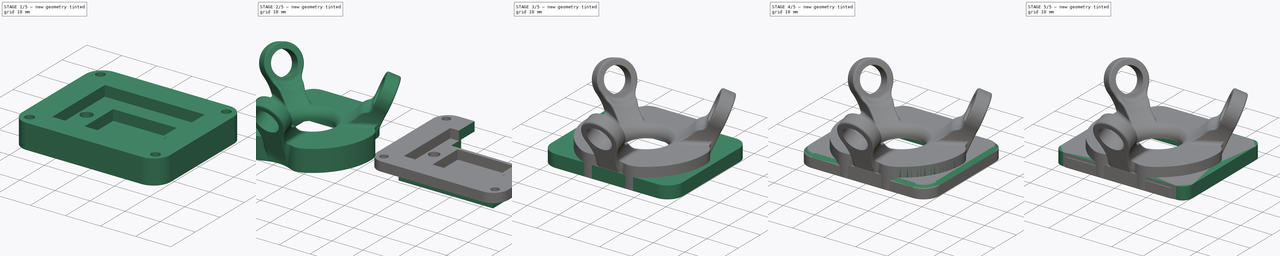
[diagram: build sequence overview — one tinted view per stage of 5, left to right]
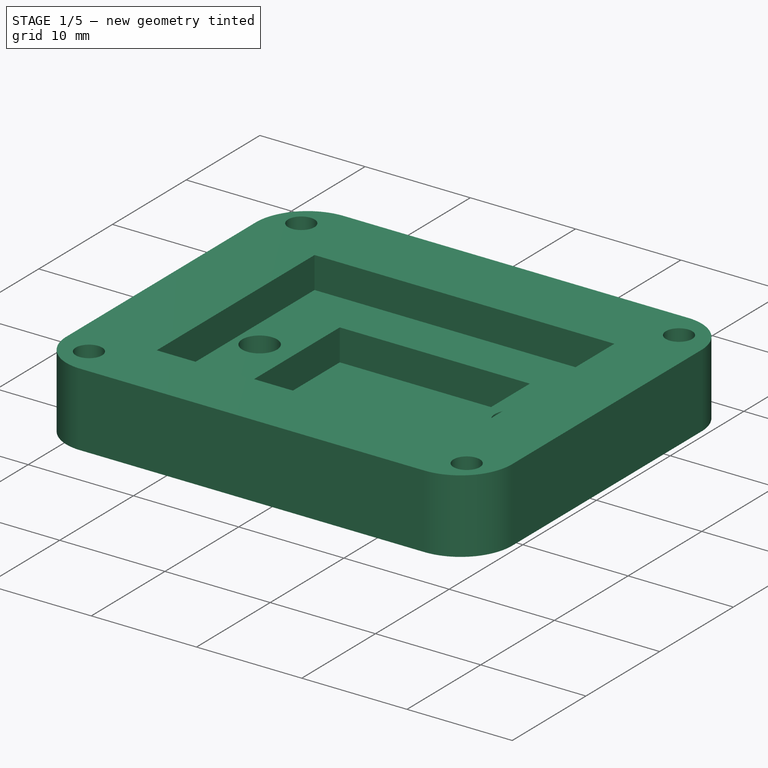
[diagram: stage 1 of 5 — iso view after this stage's code; geometry added in this stage tinted green]
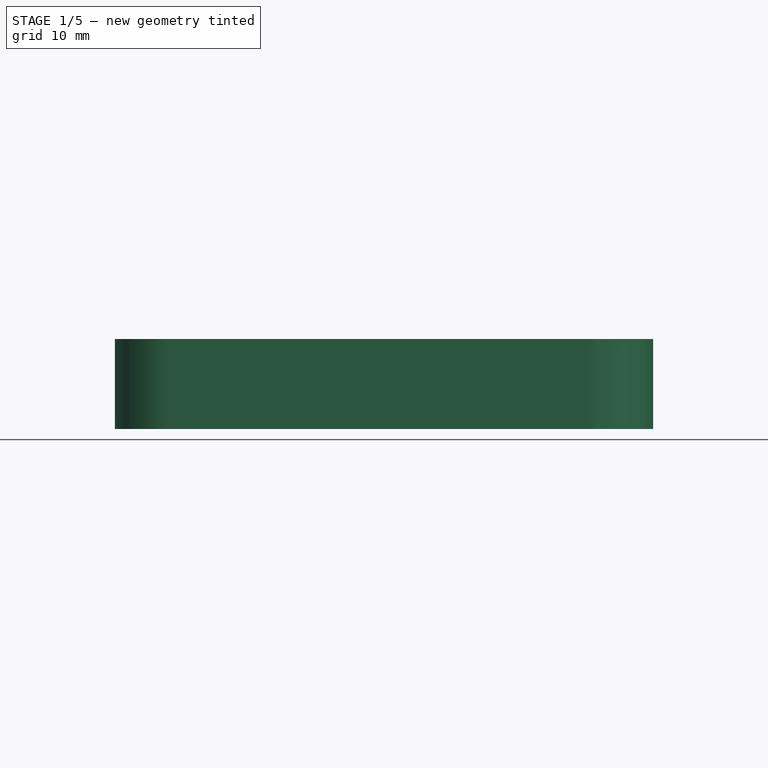
[diagram: stage 1 of 5 — front view after this stage's code; geometry added in this stage tinted green]
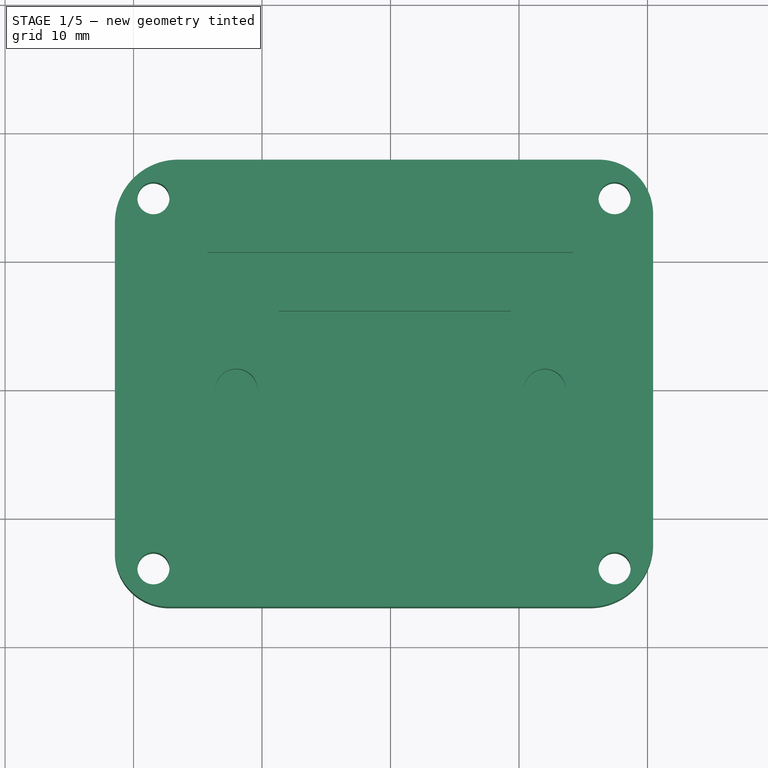
[diagram: stage 1 of 5 — top view after this stage's code; geometry added in this stage tinted green]
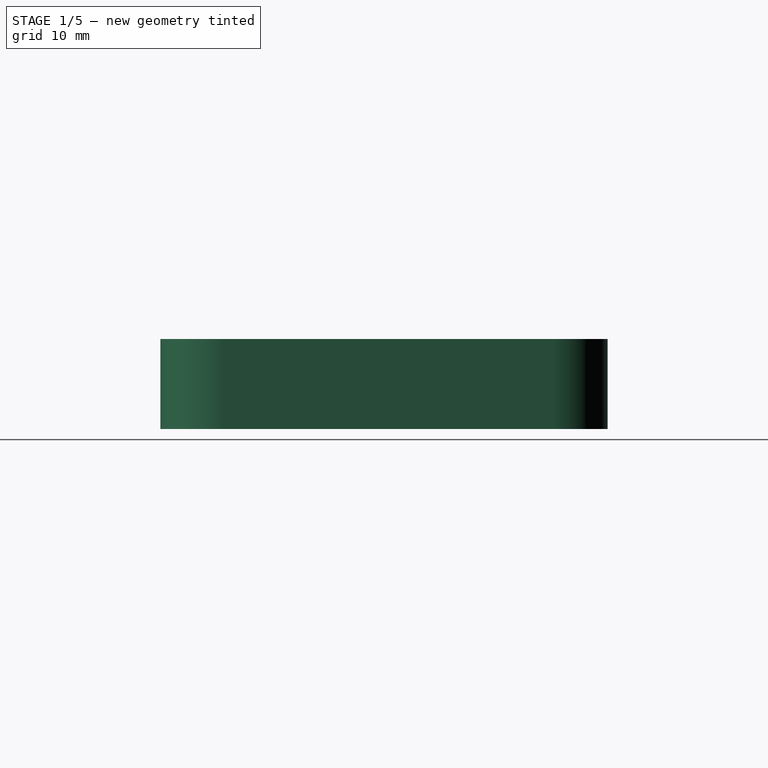
[diagram: stage 1 of 5 — right view after this stage's code; geometry added in this stage tinted green]
FCSTD DOCUMENT  (FreeCAD 1.0RUnknown)
Label: trackball-holder
License: All rights reserved
LicenseURL: https://en.wikipedia.org/wiki/All_rights_reserved
objects: Part::Feature×37, Sketcher::SketchObject×18, PartDesign::Pocket×13, App::Part×5, PartDesign::Pad×5, PartDesign::Body×3, PartDesign::FeatureBase×2, PartDesign::Chamfer×2, PartDesign::Fillet×1, PartDesign::SubShapeBinder×1
note: 144 computed .brp shape members not serialized (recipe doc carries the construction recipe); baked Part::Feature solids carry a one-line shape summary decoded from their .brp

FEATURE [Sketcher::SketchObject] Sketch001
  ArcFitTolerance = 1e-06
  AttachmentSupport = -> [Pad]
  ExternalGeometry = -> [Pad]
  FullyConstrained = true
  MakeInternals = false
  MapMode = 5
  Placement = pos=(-38.692,-1.24e-14,0) rot=(0.57735,0.57735,0.57735;2.0944rad)
  sketch-geometry (4):
    g0: LineSegment StartX=-42.2543 StartY=11.29 StartZ=0 EndX=-42.2543 EndY=7.79 EndZ=0
    g1: LineSegment StartX=-42.2543 StartY=7.79 StartZ=0 EndX=-20.7543 EndY=7.79 EndZ=0
    g2: LineSegment StartX=-20.7543 StartY=7.79 StartZ=0 EndX=-20.7543 EndY=11.29 EndZ=0
    g3: LineSegment StartX=-20.7543 StartY=11.29 StartZ=0 EndX=-42.2543 EndY=11.29 EndZ=0
  constraints (10):
    c: Coincident(g0,g1)
    c: Coincident(g1,g2)
    c: Coincident(g2,g3)
    c: Coincident(g3,g0)
    c: Vertical(g0)
    c: Vertical(g2)
    c: Horizontal(g1)
    c: Horizontal(g3)
    c: Coincident(g0,g-4)
    c: Coincident(g1,g-6)
FEATURE [Sketcher::SketchObject] Sketch004
  ArcFitTolerance = 1e-06
  AttachmentSupport = -> [XY_Plane005]
  FullyConstrained = false
  MakeInternals = false
  MapMode = 5
  sketch-geometry (12):
    g0: LineSegment StartX=20.4375 StartY=-12.0318 StartZ=0 EndX=20.4375 EndY=13.6286 EndZ=0
    g1: LineSegment StartX=16.2108 StartY=17.8553 StartZ=0 EndX=-16.5296 EndY=17.8553 EndZ=0
    g2: LineSegment StartX=-21.4525 StartY=12.9324 StartZ=0 EndX=-21.4525 EndY=-12.728 EndZ=0
    g3: LineSegment StartX=-17.2258 StartY=-16.9547 StartZ=0 EndX=15.5146 EndY=-16.9547 EndZ=0
    g4: ArcOfCircle CenterX=-16.5296 CenterY=12.9324 CenterZ=0 NormalX=0 NormalY=0 NormalZ=1 AngleXU=0 Radius=4.92288 StartAngle=1.5708 EndAngle=3.14159
    g5: GeomPoint [constr] X=-21.4525 Y=17.8553 Z=0
    g6: ArcOfCircle CenterX=-17.2258 CenterY=-12.728 CenterZ=0 NormalX=0 NormalY=0 NormalZ=1 AngleXU=0 Radius=4.22668 StartAngle=3.14159 EndAngle=4.71239
    g7: GeomPoint [constr] X=-21.4525 Y=-16.9547 Z=0
    g8: ArcOfCircle CenterX=15.5146 CenterY=-12.0318 CenterZ=0 NormalX=0 NormalY=0 NormalZ=1 AngleXU=0 Radius=4.92288 StartAngle=4.71239 EndAngle=6.28319
    g9: GeomPoint [constr] X=20.4375 Y=-16.9547 Z=0
    g10: ArcOfCircle CenterX=16.2108 CenterY=13.6286 CenterZ=0 NormalX=0 NormalY=0 NormalZ=1 AngleXU=0 Radius=4.22668 StartAngle=0 EndAngle=1.5708
    g11: GeomPoint [constr] X=20.4375 Y=17.8553 Z=0
  constraints (22):
    c: Vertical(g0)
    c: Vertical(g2)
    c: Horizontal(g1)
    c: Horizontal(g3)
    c: DistanceX(g5,g11) = 41.89
    c: DistanceY(g9,g11) = 34.81
    c: PointOnObject(g5,g1)
    c: PointOnObject(g5,g2)
    c: Tangent(g1,g4) = -1.5708
    c: Tangent(g2,g4) = -1.5708
    c: PointOnObject(g7,g2)
    c: PointOnObject(g7,g3)
    c: Tangent(g2,g6) = -1.5708
    c: Tangent(g3,g6) = -1.5708
    c: PointOnObject(g9,g0)
    c: PointOnObject(g9,g3)
    c: Tangent(g0,g8) = -1.5708
    c: Tangent(g3,g8) = -1.5708
    c: PointOnObject(g11,g0)
    c: PointOnObject(g11,g1)
    c: Tangent(g0,g10) = -1.5708
    c: Tangent(g1,g10) = -1.5708
FEATURE [PartDesign::Pad] Pad001
  Direction = (0,0,1)
  Length = 7
  Length2 = 10
  Profile = -> Sketch004
  ReferenceAxis = -> Sketch004 [N_Axis]
  Refine = true
  Reversed = true
  Suppressed = false
  Type = 0
FEATURE [Sketcher::SketchObject] Sketch005
  ArcFitTolerance = 1e-06
  AttachmentSupport = -> [Pad001]
  FullyConstrained = false
  MakeInternals = false
  MapMode = 5
  sketch-geometry (4):
    g0: LineSegment StartX=-14.2525 StartY=10.6553 StartZ=0 EndX=-14.2525 EndY=-10.7575 EndZ=0
    g1: LineSegment StartX=-14.2525 StartY=-10.7575 StartZ=0 EndX=14.2358 EndY=-10.7575 EndZ=0
    g2: LineSegment StartX=14.2358 StartY=-10.7575 StartZ=0 EndX=14.2358 EndY=10.6553 EndZ=0
    g3: LineSegment StartX=14.2358 StartY=10.6553 StartZ=0 EndX=-14.2525 EndY=10.6553 EndZ=0
  constraints (8):
    c: Coincident(g0,g1)
    c: Coincident(g1,g2)
    c: Coincident(g2,g3)
    c: Coincident(g3,g0)
    c: Vertical(g0)
    c: Vertical(g2)
    c: Horizontal(g1)
    c: Horizontal(g3)
FEATURE [PartDesign::Pocket] Pocket002
  BaseFeature = -> Pad001
  Direction = (0,0,-1)
  Length = 3
  Length2 = 5
  Profile = -> Sketch005
  ReferenceAxis = -> Sketch005 [N_Axis]
  Refine = true
  Suppressed = false
  Type = 0
FEATURE [Sketcher::SketchObject] Sketch006
  ArcFitTolerance = 1e-06
  AttachmentSupport = -> [Pocket002]
  FullyConstrained = false
  MakeInternals = false
  MapMode = 5
  Placement = pos=(0,0,-3) rot=(0,0,1;0rad)
  sketch-geometry (14):
    g0: LineSegment [constr] StartX=13.2232 StartY=1.19515 StartZ=0 EndX=10.7894 EndY=1.19515 EndZ=0
    g1: LineSegment [constr] StartX=10.7894 StartY=1.19515 StartZ=0 EndX=10.7894 EndY=-1.23867 EndZ=0
    g2: LineSegment [constr] StartX=10.7894 StartY=-1.23867 StartZ=0 EndX=13.2232 EndY=-1.23867 EndZ=0
    g3: LineSegment [constr] StartX=13.2232 StartY=-1.23867 StartZ=0 EndX=13.2232 EndY=1.19515 EndZ=0
    g4: LineSegment [constr] StartX=12.0063 StartY=1.19515 StartZ=0 EndX=12.0063 EndY=-1.23867 EndZ=0
    g5: GeomPoint X=12.0063 Y=-0.0217585 Z=0
    g6: Circle CenterX=12.0063 CenterY=-0.0217585 CenterZ=0 NormalX=0 NormalY=0 NormalZ=1 AngleXU=0 Radius=1.65
    g7: LineSegment [constr] StartX=-10.7512 StartY=1.20514 StartZ=0 EndX=-13.2417 EndY=1.20514 EndZ=0
    g8: LineSegment [constr] StartX=-13.2417 StartY=1.20514 StartZ=0 EndX=-13.2417 EndY=-1.23653 EndZ=0
    g9: LineSegment [constr] StartX=-13.2417 StartY=-1.23653 StartZ=0 EndX=-10.7512 EndY=-1.23653 EndZ=0
    g10: LineSegment [constr] StartX=-10.7512 StartY=-1.23653 StartZ=0 EndX=-10.7512 EndY=1.20514 EndZ=0
    g11: LineSegment [constr] StartX=-11.9964 StartY=1.20514 StartZ=0 EndX=-11.9964 EndY=-1.23653 EndZ=0
    g12: GeomPoint [constr] X=-11.9964 Y=-0.015697 Z=0
    g13: Circle CenterX=-11.9964 CenterY=-0.015697 CenterZ=0 NormalX=0 NormalY=0 NormalZ=1 AngleXU=0 Radius=1.65
  constraints (26):
    c: Coincident(g0,g1)
    c: Coincident(g1,g2)
    c: Coincident(g2,g3)
    c: Coincident(g3,g0)
    c: Horizontal(g0)
    c: Horizontal(g2)
    c: Vertical(g1)
    c: Vertical(g3)
    c: Symmetric(g0,g0,g4)
    c: Symmetric(g2,g2,g4)
    c: Symmetric(g4,g4,g5)
    c: Diameter(g6) = 3.3
    c: Coincident(g6,g5)
    c: Coincident(g7,g8)
    c: Coincident(g8,g9)
    c: Coincident(g9,g10)
    c: Coincident(g10,g7)
    c: Horizontal(g7)
    c: Horizontal(g9)
    c: Vertical(g8)
    c: Vertical(g10)
    c: Symmetric(g7,g7,g11)
    c: Symmetric(g9,g9,g11)
    c: Symmetric(g11,g11,g12)
    c: Diameter(g13) = 3.3
    c: Coincident(g13,g12)
FEATURE [PartDesign::Pocket] Pocket003
  BaseFeature = -> Pocket002
  Direction = (0,0,-1)
  Length = 3.3
  Length2 = 5
  Profile = -> Sketch006
  ReferenceAxis = -> Sketch006 [N_Axis]
  Refine = true
  Suppressed = false
  Type = 0
FEATURE [Sketcher::SketchObject] Sketch007
  ArcFitTolerance = 1e-06
  AttachmentSupport = -> [Pocket003]
  FullyConstrained = true
  MakeInternals = false
  MapMode = 5
  sketch-geometry (4):
    g0: Circle CenterX=-18.4525 CenterY=14.8553 CenterZ=0 NormalX=0 NormalY=0 NormalZ=1 AngleXU=0 Radius=1.25
    g1: Circle CenterX=17.4375 CenterY=14.8553 CenterZ=0 NormalX=0 NormalY=0 NormalZ=1 AngleXU=0 Radius=1.25
    g2: Circle CenterX=17.4375 CenterY=-13.9547 CenterZ=0 NormalX=0 NormalY=0 NormalZ=1 AngleXU=0 Radius=1.25
    g3: Circle CenterX=-18.4525 CenterY=-13.9547 CenterZ=0 NormalX=0 NormalY=0 NormalZ=1 AngleXU=0 Radius=1.25
  constraints (12):
    c: Diameter(g0) = 2.5
    c: Diameter(g1) = 2.5
    c: Diameter(g2) = 2.5
    c: Diameter(g3) = 2.5
    c: Distance(g0,g-3) = 3
    c: Distance(g0,g-4) = 3
    c: Distance(g1,g-6) = 3
    c: Distance(g1,g-3) = 3
    c: Distance(g2,g-6) = 3
    c: Distance(g2,g-5) = 3
    c: Distance(g3,g-5) = 3
    c: Distance(g3,g-4) = 3
FEATURE [Sketcher::SketchObject] Sketch008
  ArcFitTolerance = 1e-06
  AttachmentSupport = -> [Pocket003]
  ExternalGeometry = -> [Pocket003]
  FullyConstrained = true
  MakeInternals = false
  MapMode = 5
  Placement = pos=(0,0,-7) rot=(1,0,0;3.14159rad)
  sketch-geometry (8):
    g0: LineSegment StartX=15.2358 StartY=-11.6553 StartZ=0 EndX=15.2358 EndY=11.7575 EndZ=0
    g1: LineSegment StartX=15.2358 StartY=11.7575 StartZ=0 EndX=-15.2525 EndY=11.7575 EndZ=0
    g2: LineSegment StartX=-15.2525 StartY=11.7575 StartZ=0 EndX=-15.2525 EndY=-11.6553 EndZ=0
    g3: LineSegment StartX=-15.2525 StartY=-11.6553 StartZ=0 EndX=15.2358 EndY=-11.6553 EndZ=0
    g4: LineSegment StartX=-21.4525 StartY=16.9547 StartZ=0 EndX=-21.4525 EndY=-17.8553 EndZ=0
    g5: LineSegment StartX=-21.4525 StartY=-17.8553 StartZ=0 EndX=20.4375 EndY=-17.8553 EndZ=0
    g6: LineSegment StartX=20.4375 StartY=-17.8553 StartZ=0 EndX=20.4375 EndY=16.9547 EndZ=0
    g7: LineSegment StartX=20.4375 StartY=16.9547 StartZ=0 EndX=-21.4525 EndY=16.9547 EndZ=0
  constraints (22):
    c: Coincident(g0,g1)
    c: Coincident(g1,g2)
    c: Coincident(g2,g3)
    c: Coincident(g3,g0)
    c: Vertical(g0)
    c: Vertical(g2)
    c: Horizontal(g1)
    c: Horizontal(g3)
    c: Distance(g3,g-3) = 1
    c: Distance(g-4,g2) = 1
    c: Distance(g-6,g1) = 1
    c: Distance(g0,g-5) = 1
    c: Coincident(g4,g5)
    c: Coincident(g5,g6)
    c: Coincident(g6,g7)
    c: Coincident(g7,g4)
    c: Vertical(g4)
    c: Vertical(g6)
    c: Horizontal(g5)
    c: Horizontal(g7)
    c: Coincident(g4,g-8)
    c: Coincident(g5,g-10)
FEATURE [PartDesign::Pocket] Pocket004
  BaseFeature = -> Pocket003
  Direction = (0,0,-1)
  Length = 5
  Length2 = 5
  Profile = -> Sketch007
  ReferenceAxis = -> Sketch007 [N_Axis]
  Refine = true
  Suppressed = false
  Type = 1
FEATURE [Sketcher::SketchObject] Sketch009
  ArcFitTolerance = 1e-06
  FullyConstrained = false
  MakeInternals = false
  MapMode = 5
  Placement = pos=(0,0,-2) rot=(0,0,1;0rad)
  sketch-geometry (4):
    g0: LineSegment StartX=-8.69214 StartY=6.13703 StartZ=0 EndX=-8.69214 EndY=-6.47788 EndZ=0
    g1: LineSegment StartX=-8.69214 StartY=-6.47788 StartZ=0 EndX=9.36906 EndY=-6.47788 EndZ=0
    g2: LineSegment StartX=9.36906 StartY=-6.47788 StartZ=0 EndX=9.36906 EndY=6.13703 EndZ=0
    g3: LineSegment StartX=9.36906 StartY=6.13703 StartZ=0 EndX=-8.69214 EndY=6.13703 EndZ=0
  constraints (8):
    c: Coincident(g0,g1)
    c: Coincident(g1,g2)
    c: Coincident(g2,g3)
    c: Coincident(g3,g0)
    c: Vertical(g0)
    c: Vertical(g2)
    c: Horizontal(g1)
    c: Horizontal(g3)
FEATURE [PartDesign::Pocket] Pocket006
  BaseFeature = -> Pocket004
  Direction = (0,0,-1)
  Length = 4
  Length2 = 5
  Profile = -> Sketch009
  ReferenceAxis = -> Sketch009 [N_Axis]
  Refine = true
  Suppressed = false
  Type = 0
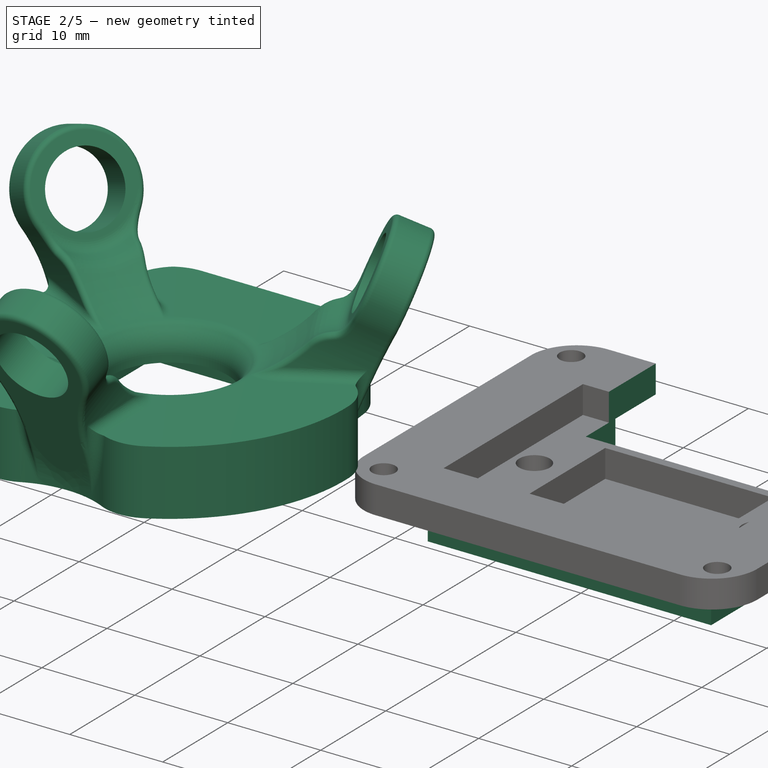
[diagram: stage 2 of 5 — iso view after this stage's code; geometry added in this stage tinted green]
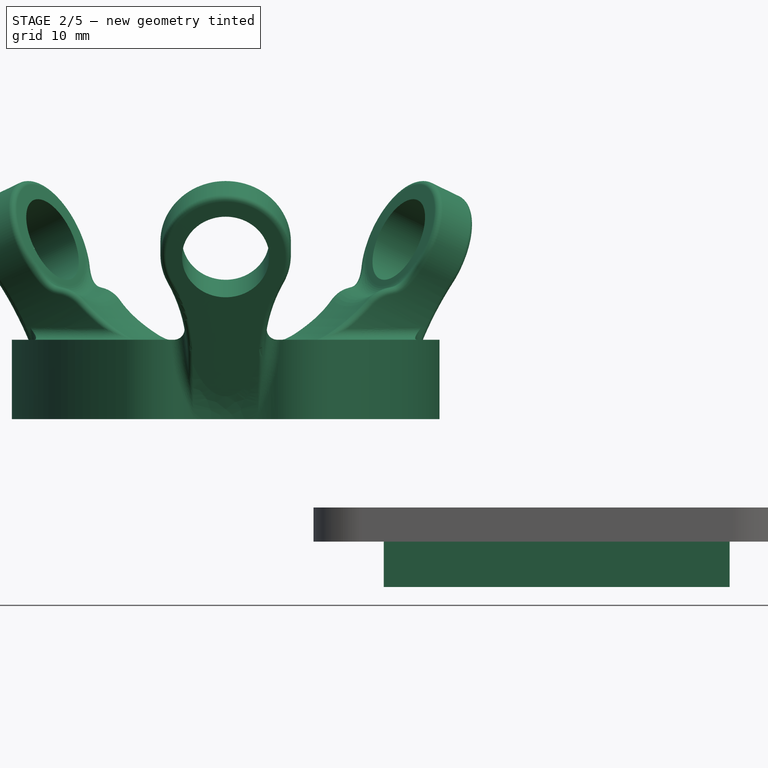
[diagram: stage 2 of 5 — front view after this stage's code; geometry added in this stage tinted green]
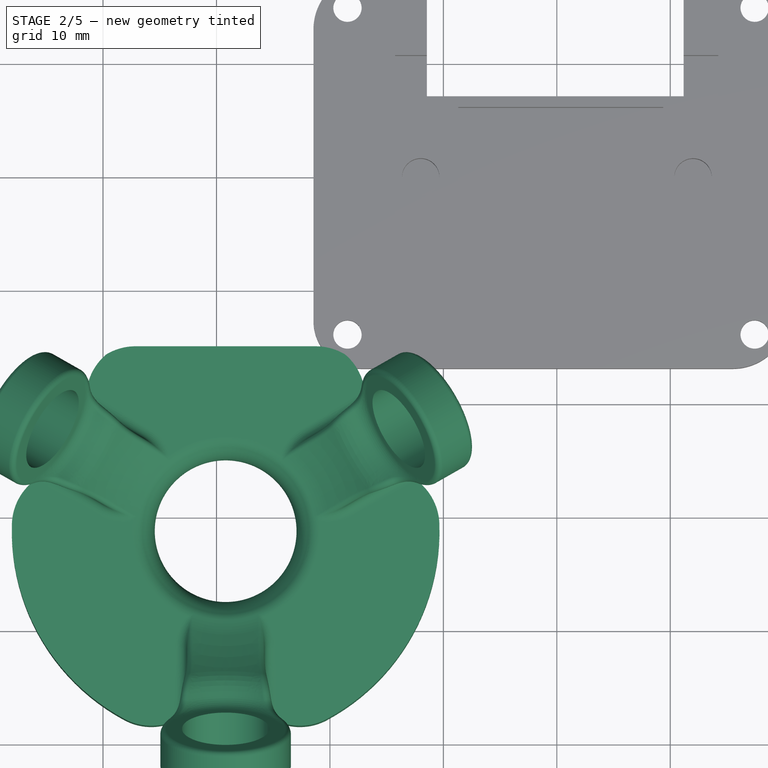
[diagram: stage 2 of 5 — top view after this stage's code; geometry added in this stage tinted green]
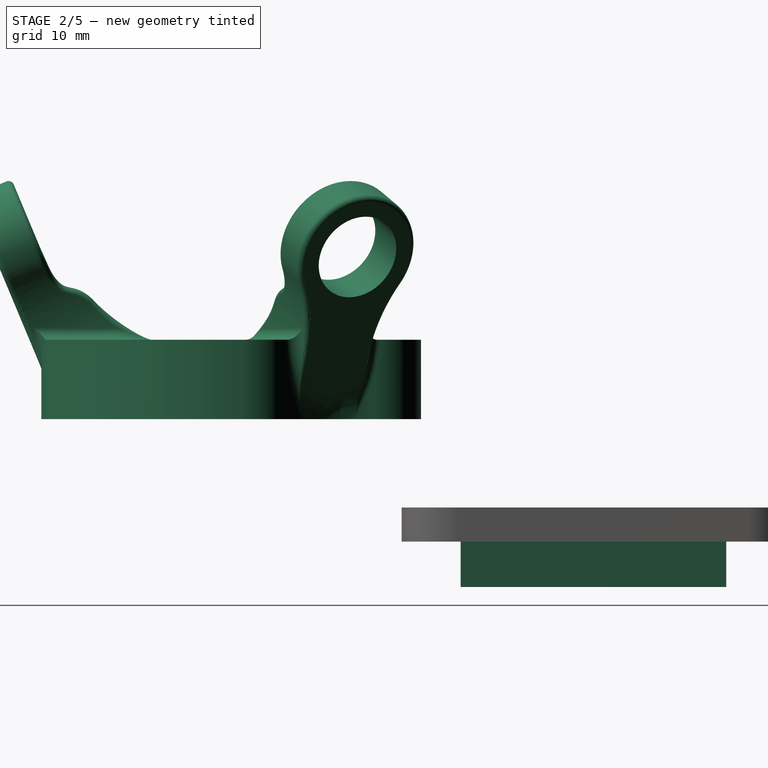
[diagram: stage 2 of 5 — right view after this stage's code; geometry added in this stage tinted green]
FEATURE [PartDesign::Pocket] Pocket007
  BaseFeature = -> Pocket006
  Direction = (0,0,1)
  Length = 4
  Length2 = 5
  Profile = -> Sketch008
  ReferenceAxis = -> Sketch008 [N_Axis]
  Refine = true
  Suppressed = false
  Type = 0
FEATURE [PartDesign::Chamfer] Chamfer
  Angle = 51
  Base = -> Pocket007 [Edge28,Edge29,Edge35,Edge34]
  BaseFeature = -> Pocket007
  ChamferType = 2
  FlipDirection = false
  Refine = true
  Size = 0.8
  Size2 = 1
  SupportTransform = false
  Suppressed = false
  UseAllEdges = false
FEATURE [Sketcher::SketchObject] Sketch010
  ArcFitTolerance = 1e-06
  AttachmentSupport = -> [Chamfer]
  FullyConstrained = false
  MakeInternals = false
  MapMode = 5
  sketch-geometry (4):
    g0: LineSegment StartX=-11.4553 StartY=18.9185 StartZ=0 EndX=-11.4553 EndY=7.09251 EndZ=0
    g1: LineSegment StartX=-11.4553 StartY=7.09251 StartZ=0 EndX=11.1733 EndY=7.09251 EndZ=0
    g2: LineSegment StartX=11.1733 StartY=7.09251 StartZ=0 EndX=11.1733 EndY=18.9185 EndZ=0
    g3: LineSegment StartX=11.1733 StartY=18.9185 StartZ=0 EndX=-11.4553 EndY=18.9185 EndZ=0
  constraints (8):
    c: Coincident(g0,g1)
    c: Coincident(g1,g2)
    c: Coincident(g2,g3)
    c: Coincident(g3,g0)
    c: Vertical(g0)
    c: Vertical(g2)
    c: Horizontal(g1)
    c: Horizontal(g3)
FEATURE [PartDesign::Pocket] Pocket008
  BaseFeature = -> Chamfer
  Direction = (0,0,-1)
  Length = 5
  Length2 = 5
  Profile = -> Sketch010
  ReferenceAxis = -> Sketch010 [N_Axis]
  Refine = true
  Suppressed = false
  Type = 1
FEATURE [PartDesign::Body] Body
  AllowCompound = false
  BaseFeature = -> Part__Feature008
  Group = -> [BaseFeature,Sketch,Pad,Sketch001,Pocket,Sketch002,Pocket001,Sketch011,Sketch012,Pad002,Pocket009,Sketch013,Pocket010,Fillet]
  Origin = -> Origin004
  Placement = pos=(29,32,-7.8) rot=(0,0,1;0rad)
  Tip = -> Fillet
FEATURE [App::Part] Part  label="top-static"
  Group = -> [Part__Feature,Part__Feature001,Part__Feature003,Part__Feature004,Part__Feature006,Part__Feature007,Part__Feature009,Part__Feature008,Body]
  Origin = -> Origin
  Placement = pos=(0,-0.5,-0.2) rot=(0,0,1;0rad)
FEATURE [Part::Feature] Part__Feature030  label="Trackball001"
  shape: bbox 34 x 34 x 34 mm, 1 faces (baked)
FEATURE [Part::Feature] Part__Feature032  label="BTU housing"
  shape: bbox 8.956 x 9.626 x 9.54 mm, 6 faces (baked)
FEATURE [Part::Feature] Part__Feature034  label="BTU housing001"
  shape: bbox 8.956 x 9.626 x 9.54 mm, 6 faces (baked)
FEATURE [Part::Feature] Part__Feature035  label="BTU ball"
  shape: bbox 4 x 4 x 4 mm, 1 faces (baked)
FEATURE [Part::Feature] Part__Feature036  label="BTU housing002"
  shape: bbox 9 x 7.796 x 9.54 mm, 6 faces (baked)
FEATURE [Part::Feature] Part__Feature037  label="BTU ball001"
  shape: bbox 4 x 4 x 4 mm, 1 faces (baked)
FEATURE [Part::Feature] Part__Feature038  label="Trackball-holder001"
  shape: bbox 43.85 x 39.78 x 21.7 mm, 196 faces (baked)
FEATURE [Part::Feature] Part__Feature039  label="BTU ball002"
  shape: bbox 4 x 4 x 4 mm, 1 faces (baked)
FEATURE [Part::Feature] Part__Feature040  label="Trackball-holder002"
  shape: bbox 43.85 x 39.78 x 21.7 mm, 196 faces (baked)
FEATURE [PartDesign::FeatureBase] BaseFeature001
  BaseFeature = -> Part__Feature040
  Suppressed = false
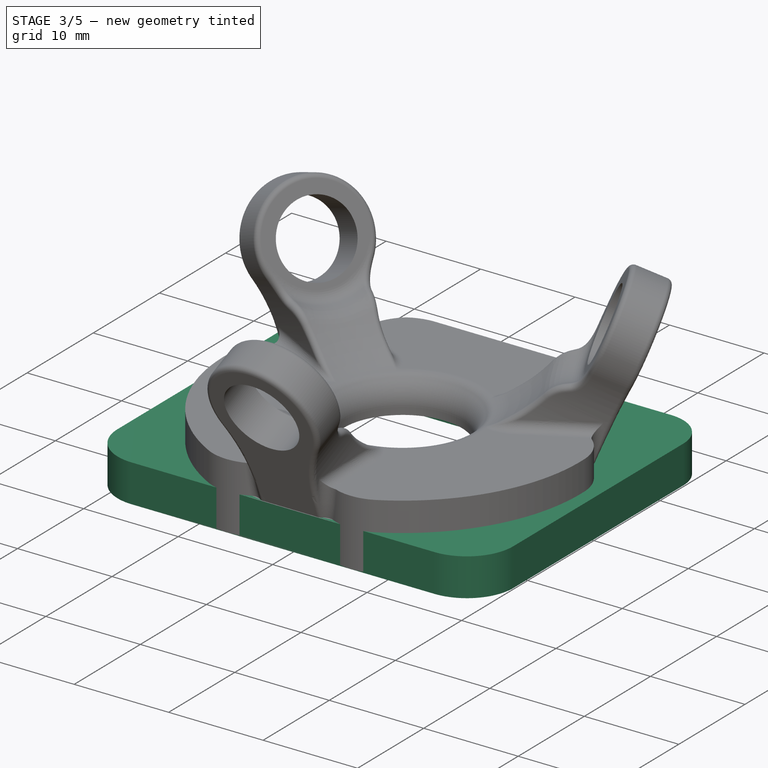
[diagram: stage 3 of 5 — iso view after this stage's code; geometry added in this stage tinted green]
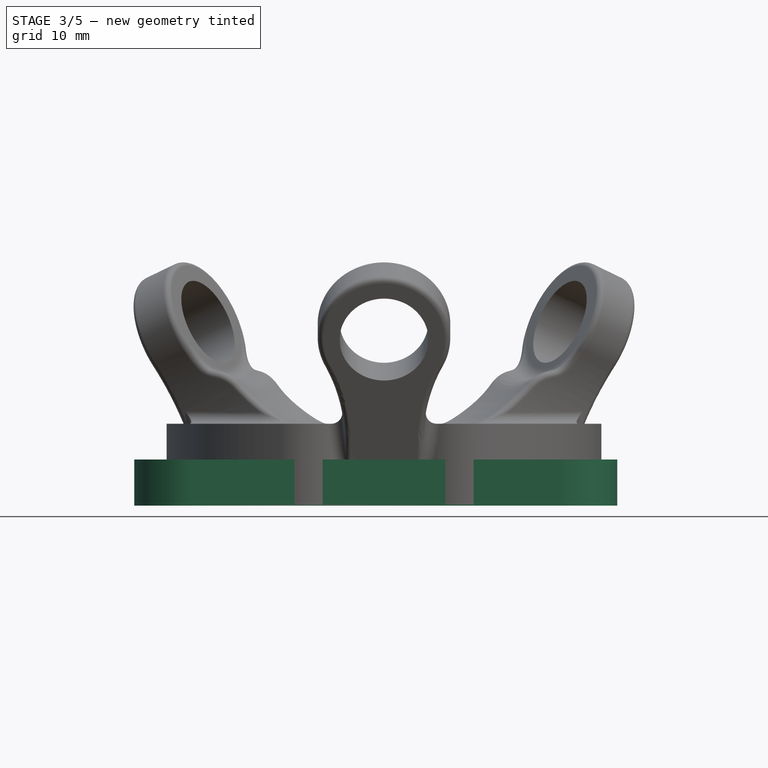
[diagram: stage 3 of 5 — front view after this stage's code; geometry added in this stage tinted green]
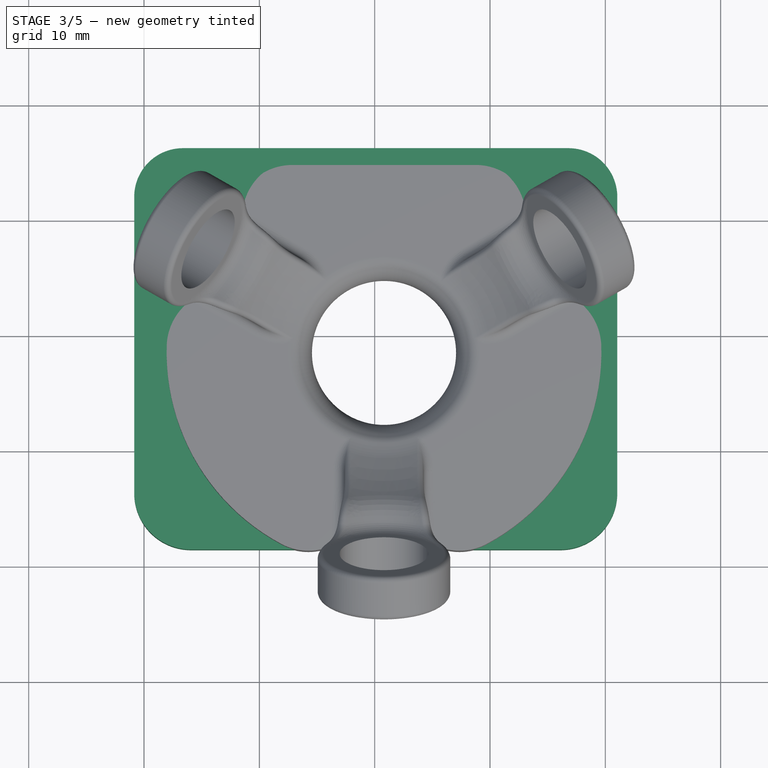
[diagram: stage 3 of 5 — top view after this stage's code; geometry added in this stage tinted green]
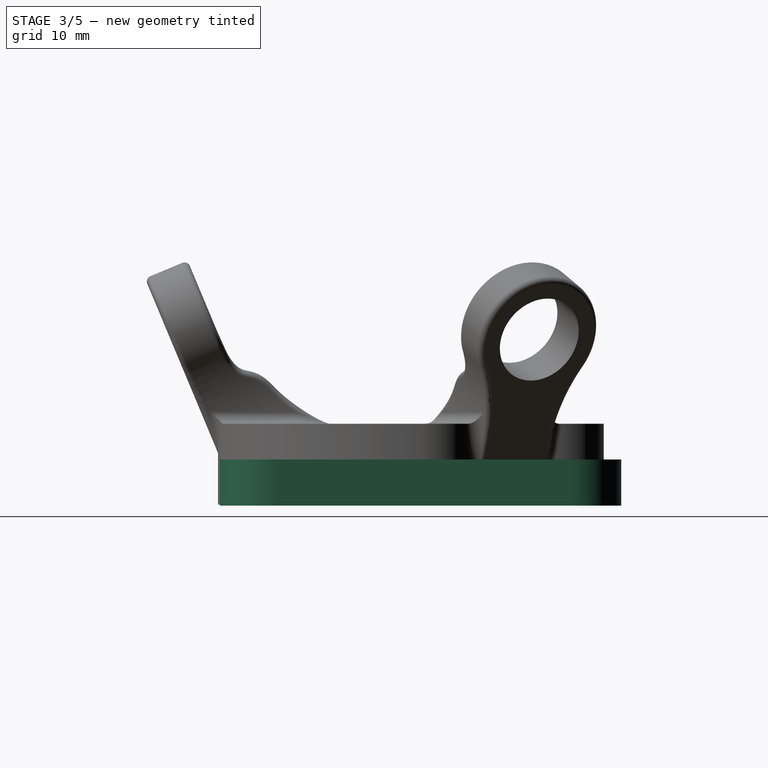
[diagram: stage 3 of 5 — right view after this stage's code; geometry added in this stage tinted green]
FEATURE [Sketcher::SketchObject] Sketch014
  ArcFitTolerance = 1e-06
  AttachmentSupport = -> [BaseFeature001]
  ExternalGeometry = -> [BaseFeature001]
  FullyConstrained = true
  MakeInternals = false
  MapMode = 5
  Placement = pos=(0,0,13.79) rot=(1,0,0;3.14159rad)
  sketch-geometry (2):
    g0: Circle CenterX=-43.692 CenterY=31.5043 CenterZ=0 NormalX=0 NormalY=0 NormalZ=1 AngleXU=0 Radius=2.2
    g1: Circle CenterX=-14.692 CenterY=31.5043 CenterZ=0 NormalX=0 NormalY=0 NormalZ=1 AngleXU=0 Radius=2.2
  constraints (4):
    c: Coincident(g0,g-3)
    c: Equal(g0,g-3)
    c: Coincident(g1,g-4)
    c: Equal(g1,g-4)
FEATURE [PartDesign::Pad] Pad003
  BaseFeature = -> BaseFeature001
  Direction = (0,0,-1)
  Length = 6
  Length2 = 10
  Profile = -> Sketch014
  ReferenceAxis = -> Sketch014 [N_Axis]
  Refine = true
  Suppressed = false
  Type = 0
FEATURE [Sketcher::SketchObject] Sketch015
  ArcFitTolerance = 1e-06
  AttachmentSupport = -> [Pad003]
  FullyConstrained = false
  MakeInternals = false
  MapMode = 5
  Placement = pos=(0,0,11.29) rot=(1,0,0;3.14159rad)
  sketch-geometry (4):
    g0: LineSegment StartX=-41.9342 StartY=44.531 StartZ=0 EndX=-41.9342 EndY=19.2191 EndZ=0
    g1: LineSegment StartX=-41.9342 StartY=19.2191 StartZ=0 EndX=-17.3151 EndY=19.2191 EndZ=0
    g2: LineSegment StartX=-17.3151 StartY=19.2191 StartZ=0 EndX=-17.3151 EndY=44.531 EndZ=0
    g3: LineSegment StartX=-17.3151 StartY=44.531 StartZ=0 EndX=-41.9342 EndY=44.531 EndZ=0
  constraints (8):
    c: Coincident(g0,g1)
    c: Coincident(g1,g2)
    c: Coincident(g2,g3)
    c: Coincident(g3,g0)
    c: Vertical(g0)
    c: Vertical(g2)
    c: Horizontal(g1)
    c: Horizontal(g3)
FEATURE [Sketcher::SketchObject] Sketch016
  ArcFitTolerance = 1e-06
  AttachmentOffset = pos=(0,0,0.1) rot=(0,0,1;0rad)
  AttachmentSupport = -> [Pad003]
  FullyConstrained = false
  MakeInternals = false
  MapMode = 5
  Placement = pos=(0,2e-16,7.69) rot=(1,0,0;3.14159rad)
  sketch-geometry (12):
    g0: LineSegment StartX=-8.96251 StartY=17.9714 StartZ=0 EndX=-8.96251 EndY=43.6319 EndZ=0
    g1: LineSegment StartX=-13.8854 StartY=48.5548 StartZ=0 EndX=-45.9296 EndY=48.5548 EndZ=0
    g2: LineSegment StartX=-50.8525 StartY=43.6319 StartZ=0 EndX=-50.8525 EndY=17.9714 EndZ=0
    g3: LineSegment StartX=-46.6258 StartY=13.7448 StartZ=0 EndX=-13.1892 EndY=13.7448 EndZ=0
    g4: ArcOfCircle CenterX=-45.9296 CenterY=43.6319 CenterZ=0 NormalX=0 NormalY=0 NormalZ=1 AngleXU=0 Radius=4.92288 StartAngle=1.5708 EndAngle=3.14159
    g5: GeomPoint [constr] X=-50.8525 Y=48.5548 Z=0
    g6: ArcOfCircle CenterX=-13.8854 CenterY=43.6319 CenterZ=0 NormalX=0 NormalY=0 NormalZ=1 AngleXU=0 Radius=4.92288 StartAngle=0 EndAngle=1.5708
    g7: GeomPoint [constr] X=-8.96251 Y=48.5548 Z=0
    g8: ArcOfCircle CenterX=-13.1892 CenterY=17.9714 CenterZ=0 NormalX=0 NormalY=0 NormalZ=1 AngleXU=0 Radius=4.22668 StartAngle=4.71239 EndAngle=6.28319
    g9: GeomPoint [constr] X=-8.96251 Y=13.7448 Z=0
    g10: ArcOfCircle CenterX=-46.6258 CenterY=17.9714 CenterZ=0 NormalX=0 NormalY=0 NormalZ=1 AngleXU=0 Radius=4.22668 StartAngle=3.14159 EndAngle=4.71239
    g11: GeomPoint [constr] X=-50.8525 Y=13.7448 Z=0
  constraints (22):
    c: Vertical(g0)
    c: Vertical(g2)
    c: Horizontal(g1)
    c: Horizontal(g3)
    c: DistanceX(g5,g7) = 41.89
    c: DistanceY(g9,g7) = 34.81
    c: PointOnObject(g5,g1)
    c: PointOnObject(g5,g2)
    c: Tangent(g1,g4) = -1.5708
    c: Tangent(g2,g4) = -1.5708
    c: PointOnObject(g7,g0)
    c: PointOnObject(g7,g1)
    c: Tangent(g0,g6) = -1.5708
    c: Tangent(g1,g6) = -1.5708
    c: PointOnObject(g9,g0)
    c: PointOnObject(g9,g3)
    c: Tangent(g0,g8) = -1.5708
    c: Tangent(g3,g8) = -1.5708
    c: PointOnObject(g11,g2)
    c: PointOnObject(g11,g3)
    c: Tangent(g2,g10) = -1.5708
    c: Tangent(g3,g10) = -1.5708
FEATURE [PartDesign::Pad] Pad004
  BaseFeature = -> Pad003
  Direction = (0,0,-1)
  Length = 4
  Length2 = 10
  Profile = -> Sketch016
  ReferenceAxis = -> Sketch016 [N_Axis]
  Refine = true
  Reversed = true
  Suppressed = false
  Type = 0
FEATURE [PartDesign::SubShapeBinder] Binder
  BindCopyOnChange = 0
  BindMode = 0
  ClaimChildren = false
  Context = -> Part001 [Part002.Body003.Binder.]
  Fuse = false
  MakeFace = true
  OffsetFill = false
  OffsetIntersection = false
  OffsetJoinType = 0
  OffsetOpenResult = false
  PartialLoad = false
  Refine = true
  Relative = true
  Support = -> [Body001]
  _Version = 2
FEATURE [Sketcher::SketchObject] Sketch017
  ArcFitTolerance = 1e-06
  AttachmentSupport = -> [Pad004]
  ExternalGeometry = -> [Binder]
  FullyConstrained = true
  MakeInternals = false
  MapMode = 5
  Placement = pos=(0,0,7.69) rot=(1,0,0;3.14159rad)
  sketch-geometry (4):
    g0: Circle CenterX=-47.8525 CenterY=45.5547 CenterZ=0 NormalX=0 NormalY=0 NormalZ=1 AngleXU=0 Radius=1.65
    g1: Circle CenterX=-11.9625 CenterY=45.5547 CenterZ=0 NormalX=0 NormalY=0 NormalZ=1 AngleXU=0 Radius=1.65
    g2: Circle CenterX=-11.9625 CenterY=16.7447 CenterZ=0 NormalX=0 NormalY=0 NormalZ=1 AngleXU=0 Radius=1.65
    g3: Circle CenterX=-47.8525 CenterY=16.7447 CenterZ=0 NormalX=0 NormalY=0 NormalZ=1 AngleXU=0 Radius=1.65
  constraints (8):
    c: Diameter(g0) = 3.3
    c: Coincident(g0,g-3)
    c: Diameter(g1) = 3.3
    c: Coincident(g1,g-4)
    c: Diameter(g2) = 3.3
    c: Coincident(g2,g-5)
    c: Diameter(g3) = 3.3
    c: Coincident(g3,g-6)
FEATURE [PartDesign::Pocket] Pocket011
  BaseFeature = -> Pad004
  Direction = (0,0,1)
  Length = 3.3
  Length2 = 5
  Profile = -> Sketch017
  ReferenceAxis = -> Sketch017 [N_Axis]
  Refine = true
  Suppressed = false
  Type = 0
FEATURE [PartDesign::Pocket] Pocket012
  BaseFeature = -> Pocket011
  Direction = (0,0,1)
  Length = 5
  Length2 = 5
  Profile = -> Sketch015
  ReferenceAxis = -> Sketch015 [N_Axis]
  Refine = true
  Reversed = true
  Suppressed = false
  Type = 0
FEATURE [Sketcher::SketchObject] Sketch018
  ArcFitTolerance = 1e-06
  AttachmentSupport = -> [Pocket012]
  ExternalGeometry = -> [Pocket012]
  FullyConstrained = true
  MakeInternals = false
  MapMode = 5
  Placement = pos=(0,0,11.69) rot=(0,0,1;0rad)
  sketch-geometry (1):
    g0: Circle CenterX=-29.192 CenterY=-31.5043 CenterZ=0 NormalX=0 NormalY=0 NormalZ=1 AngleXU=0 Radius=6.25
  constraints (2):
    c: Coincident(g0,g-3)
    c: Equal(g0,g-3)
FEATURE [PartDesign::Pocket] Pocket013
  BaseFeature = -> Pocket012
  Direction = (0,0,-1)
  Length = 5
  Length2 = 5
  Profile = -> Sketch018
  ReferenceAxis = -> Sketch018 [N_Axis]
  Refine = true
  Suppressed = false
  Type = 0
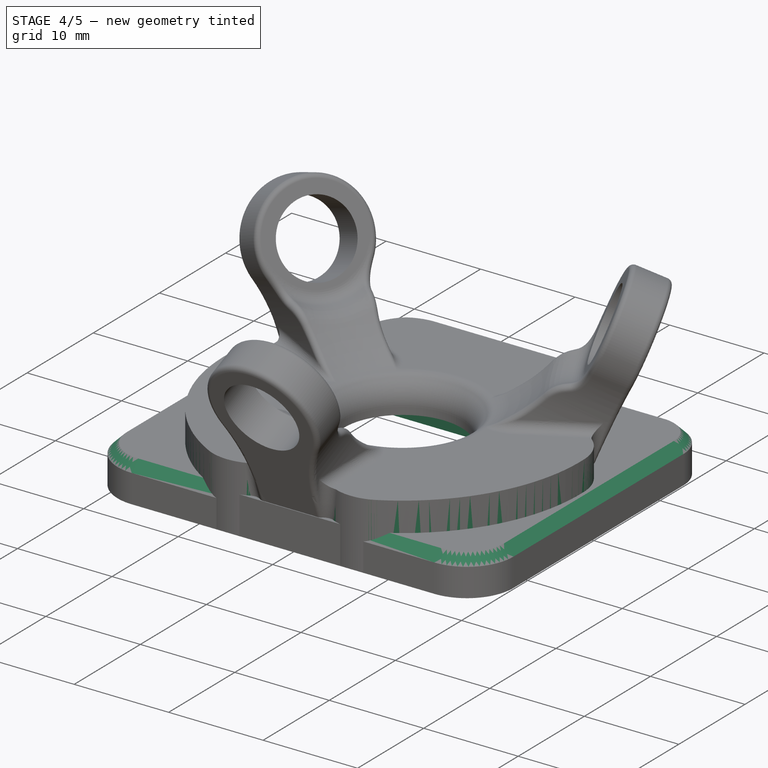
[diagram: stage 4 of 5 — iso view after this stage's code; geometry added in this stage tinted green]
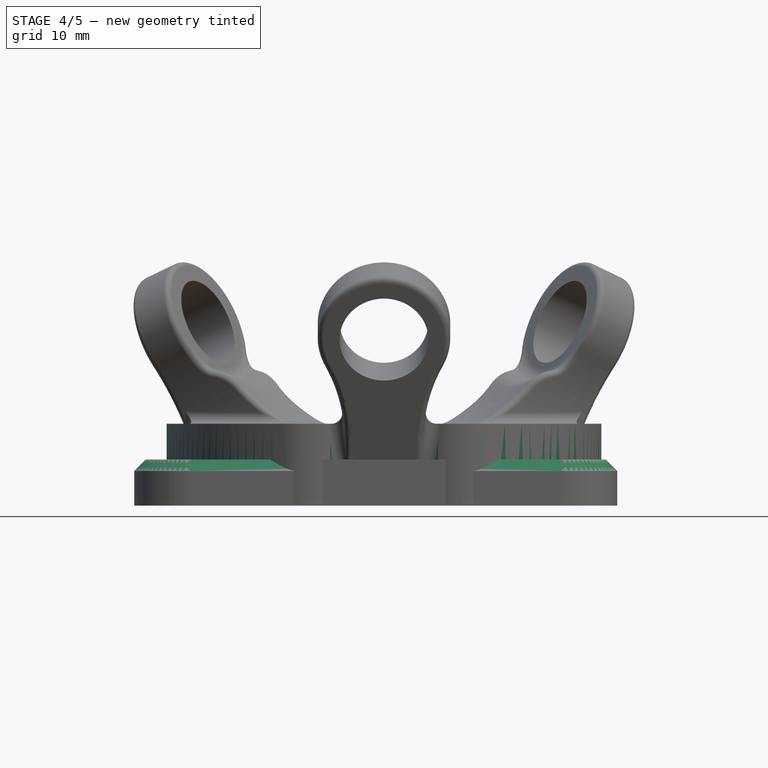
[diagram: stage 4 of 5 — front view after this stage's code; geometry added in this stage tinted green]
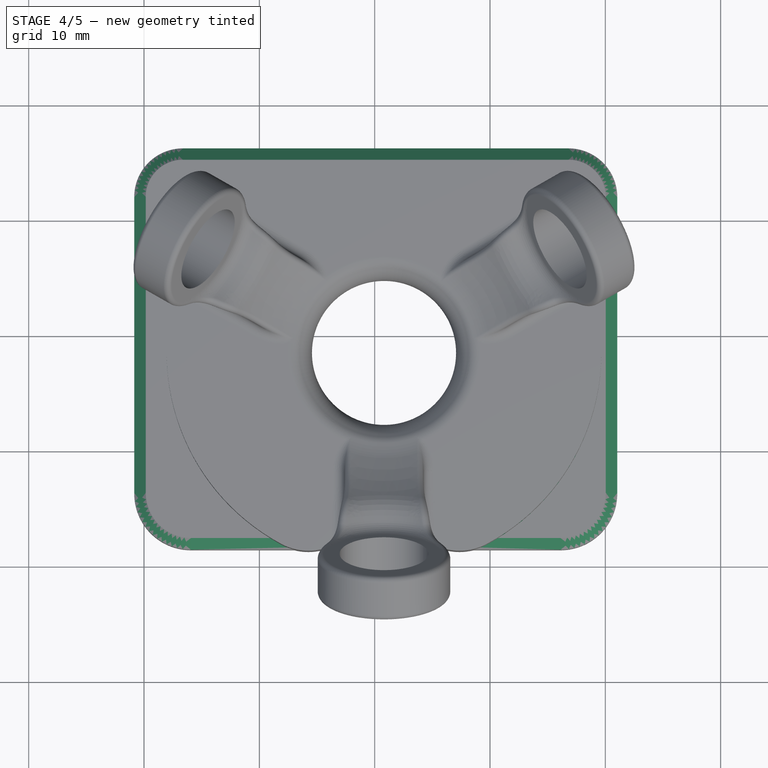
[diagram: stage 4 of 5 — top view after this stage's code; geometry added in this stage tinted green]
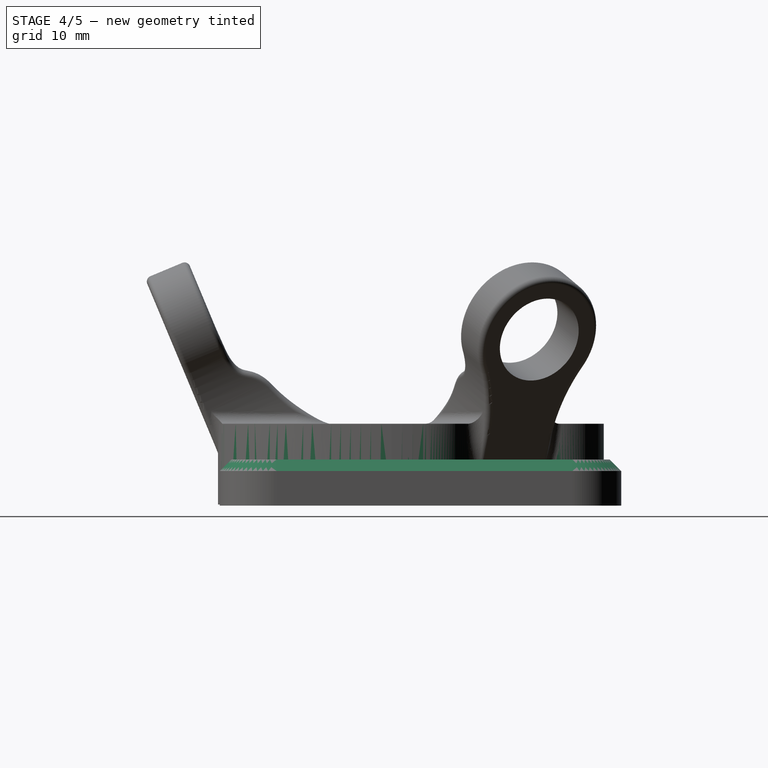
[diagram: stage 4 of 5 — right view after this stage's code; geometry added in this stage tinted green]
FEATURE [Part::Feature] Part__Feature  label="Trackball"
  Placement = pos=(29,32,-7.8) rot=(0,0,1;0rad)
  shape: bbox 34 x 34 x 34 mm, 1 faces (baked)
FEATURE [Part::Feature] Part__Feature001  label="Static bearing"
  Placement = pos=(29,32,-7.8) rot=(0,0,1;0rad)
  shape: bbox 3 x 3 x 3 mm, 1 faces (baked)
FEATURE [Part::Feature] Part__Feature003  label="Static bearing001"
  Placement = pos=(29,32,-7.8) rot=(0,0,1;0rad)
  shape: bbox 3 x 3 x 3 mm, 1 faces (baked)
FEATURE [Part::Feature] Part__Feature004  label="Bearing holder"
  Placement = pos=(29,32,-7.8) rot=(0,0,1;0rad)
  shape: bbox 9.742 x 7.809 x 9.716 mm, 12 faces (baked)
FEATURE [Part::Feature] Part__Feature006  label="Static bearing002"
  Placement = pos=(29,32,-7.8) rot=(0,0,1;0rad)
  shape: bbox 3 x 3 x 3 mm, 1 faces (baked)
FEATURE [Part::Feature] Part__Feature007  label="Bearing holder001"
  Placement = pos=(29,32,-7.8) rot=(0,0,1;0rad)
  shape: bbox 8.97 x 9.681 x 9.716 mm, 12 faces (baked)
FEATURE [Part::Feature] Part__Feature008  label="Trackball-holder"
  Placement = pos=(29,32,-7.8) rot=(0,0,1;0rad)
  shape: bbox 43.85 x 39.78 x 21.7 mm, 196 faces (baked)
FEATURE [Part::Feature] Part__Feature009  label="Bearing holder002"
  Placement = pos=(29,32,-7.8) rot=(0,0,1;0rad)
  shape: bbox 8.97 x 9.681 x 9.716 mm, 12 faces (baked)
FEATURE [Part::Feature] Part__Feature010  label="Lead"
  shape: bbox 0.9 x 0.5 x 4.51 mm, 14 faces (baked)
FEATURE [Part::Feature] Part__Feature011  label="Lead001"
  Placement = pos=(-7.11e-14,-1.78,0) rot=(0,0,1;0rad)
  shape: bbox 0.9 x 0.5 x 4.51 mm, 14 faces (baked)
FEATURE [Part::Feature] Part__Feature012  label="Lead002"
  Placement = pos=(-1.78e-14,-3.56,0) rot=(0,0,1;0rad)
  shape: bbox 0.9 x 0.5 x 4.51 mm, 14 faces (baked)
FEATURE [Part::Feature] Part__Feature013  label="Lead003"
  Placement = pos=(-1.066e-13,-5.34,0) rot=(0,0,1;0rad)
  shape: bbox 0.9 x 0.5 x 4.51 mm, 14 faces (baked)
FEATURE [Part::Feature] Part__Feature014  label="Lead004"
  Placement = pos=(-7.11e-14,-7.12,0) rot=(0,0,1;0rad)
  shape: bbox 0.9 x 0.5 x 4.51 mm, 14 faces (baked)
FEATURE [Part::Feature] Part__Feature015  label="Lead005"
  Placement = pos=(-1.243e-13,-8.9,6e-16) rot=(0,0,1;0rad)
  shape: bbox 0.9 x 0.5 x 4.51 mm, 14 faces (baked)
FEATURE [Part::Feature] Part__Feature016  label="Lead006"
  Placement = pos=(-7.11e-14,-10.68,-6e-16) rot=(0,0,1;0rad)
  shape: bbox 0.9 x 0.5 x 4.51 mm, 14 faces (baked)
FEATURE [Part::Feature] Part__Feature017  label="Lead007"
  Placement = pos=(-7.11e-14,-12.46,-6e-16) rot=(0,0,1;0rad)
  shape: bbox 0.9 x 0.5 x 4.51 mm, 14 faces (baked)
FEATURE [Part::Feature] Part__Feature018  label="Lead(Mirror)"
  Placement = pos=(-1.78e-14,-0.89,0) rot=(0,1,0;3.14159rad)
  shape: bbox 0.9 x 0.5 x 4.51 mm, 14 faces (baked)
FEATURE [Part::Feature] Part__Feature019  label="Lead(Mirror)001"
  Placement = pos=(-1.78e-14,-2.67,0) rot=(0,1,0;3.14159rad)
  shape: bbox 0.9 x 0.5 x 4.51 mm, 14 faces (baked)
FEATURE [Part::Feature] Part__Feature020  label="Lead(Mirror)002"
  Placement = pos=(3.55e-14,-4.45,0) rot=(0,1,0;3.14159rad)
  shape: bbox 0.9 x 0.5 x 4.51 mm, 14 faces (baked)
FEATURE [Part::Feature] Part__Feature021  label="Lead(Mirror)003"
  Placement = pos=(1.78e-14,-6.23,0) rot=(0,1,0;3.14159rad)
  shape: bbox 0.9 x 0.5 x 4.51 mm, 14 faces (baked)
FEATURE [Part::Feature] Part__Feature022  label="Lead(Mirror)004"
  Placement = pos=(-3.55e-14,-8.01,6e-16) rot=(0,1,0;3.14159rad)
  shape: bbox 0.9 x 0.5 x 4.51 mm, 14 faces (baked)
FEATURE [Part::Feature] Part__Feature023  label="Lead(Mirror)005"
  Placement = pos=(1.78e-14,-9.79,6e-16) rot=(0,1,0;3.14159rad)
  shape: bbox 0.9 x 0.5 x 4.51 mm, 14 faces (baked)
FEATURE [Part::Feature] Part__Feature024  label="Lead(Mirror)006"
  Placement = pos=(-3.55e-14,-11.57,-6e-16) rot=(0,1,0;3.14159rad)
  shape: bbox 0.9 x 0.5 x 4.51 mm, 14 faces (baked)
FEATURE [Part::Feature] Part__Feature025  label="Lead(Mirror)007"
  Placement = pos=(-3.55e-14,-13.35,-6e-16) rot=(0,1,0;3.14159rad)
  shape: bbox 0.9 x 0.5 x 4.51 mm, 14 faces (baked)
FEATURE [Part::Feature] Part__Feature026  label="SOLID"
  shape: bbox 10.1 x 16.2 x 2.21 mm, 48 faces (baked)
FEATURE [App::Part] Chip
  Group = -> [Part__Feature010,Part__Feature011,Part__Feature012,Part__Feature013,Part__Feature014,Part__Feature015,Part__Feature016,Part__Feature017,Part__Feature018,Part__Feature019,Part__Feature020,Part__Feature021,Part__Feature022,Part__Feature023,Part__Feature024,Part__Feature025,Part__Feature026]
  Origin = -> Origin001
  Placement = pos=(0,0,1e-16) rot=(0,0,1;0rad)
FEATURE [Part::Feature] Part__Feature027  label="Lens"
  Placement = pos=(0,0,-6.27) rot=(0,0,1;0rad)
  shape: bbox 18.86 x 21.16 x 8.475 mm, 85 faces (baked)
FEATURE [Part::Feature] Part__Feature028  label="PMW3360DM PCB"
  Placement = pos=(-104.986,-148.495,-3.79) rot=(0,0,1;1.5708rad)
  shape: bbox 21 x 28 x 1.58 mm, 36 faces (baked)
FEATURE [App::Part] PMW3360_v12_v1  label="PMW3360 v12 v1"
  Group = -> [Chip,Part__Feature027,Part__Feature028]
  Origin = -> Origin002
  Placement = pos=(0,0,-4) rot=(-0.707107,0.707107,0;3.14159rad)
FEATURE [Part::Feature] Part__Feature029  label="FusionComponent"
  Placement = pos=(148.5,105,0) rot=(0,1,0;3.14159rad)
  shape: bbox 38.01 x 31.01 x 5.805 mm, 57 faces (baked)
FEATURE [PartDesign::FeatureBase] BaseFeature
  BaseFeature = -> Part__Feature008
  Suppressed = false
FEATURE [Sketcher::SketchObject] Sketch
  ArcFitTolerance = 1e-06
  AttachmentSupport = -> [BaseFeature]
  ExternalGeometry = -> [BaseFeature]
  FullyConstrained = true
  MakeInternals = false
  MapMode = 5
  Placement = pos=(-5e-16,1.2e-15,7.79) rot=(1,0,0;3.14159rad)
  sketch-geometry (2):
    g0: Circle CenterX=-43.692 CenterY=31.5043 CenterZ=0 NormalX=0 NormalY=0 NormalZ=1 AngleXU=0 Radius=2.2
    g1: Circle CenterX=-14.692 CenterY=31.5043 CenterZ=0 NormalX=0 NormalY=0 NormalZ=1 AngleXU=0 Radius=2.2
  constraints (4):
    c: Coincident(g0,g-3)
    c: Equal(g0,g-3)
    c: Coincident(g1,g-4)
    c: Equal(g1,g-4)
FEATURE [PartDesign::Pad] Pad
  BaseFeature = -> BaseFeature
  Direction = (0,0,-1)
  Length = 7
  Length2 = 10
  Profile = -> Sketch
  ReferenceAxis = -> Sketch [N_Axis]
  Refine = true
  Reversed = true
  Suppressed = false
  Type = 0
FEATURE [PartDesign::Body] Body001  label="base"
  AllowCompound = false
  Group = -> [Sketch004,Pad001,Sketch005,Pocket002,Sketch006,Pocket003,Sketch007,Sketch008,Pocket004,Sketch009,Pocket006,Pocket007,Chamfer,Sketch010,Pocket008]
  Origin = -> Origin005
  Placement = pos=(0,0,-0.2) rot=(0,0,1;0rad)
  Tip = -> Pocket008
FEATURE [PartDesign::Pocket] Pocket
  BaseFeature = -> Pad
  Direction = (-1,0,0)
  Length = 2
  Length2 = 5
  Profile = -> Sketch001
  ReferenceAxis = -> Sketch001 [N_Axis]
  Refine = true
  Suppressed = false
  Type = 0
FEATURE [PartDesign::Chamfer] Chamfer001
  Angle = 45
  Base = -> Pocket013 [Edge61]
  BaseFeature = -> Pocket013
  ChamferType = 0
  FlipDirection = false
  Refine = true
  Size = 1
  Size2 = 1
  SupportTransform = false
  Suppressed = false
  UseAllEdges = false
FEATURE [PartDesign::Body] Body003  label="btu top"
  AllowCompound = false
  BaseFeature = -> Part__Feature040
  Group = -> [BaseFeature001,Sketch014,Pad003,Sketch016,Pad004,Binder,Sketch017,Pocket011,Sketch015,Pocket012,Sketch018,Pocket013,Chamfer001]
  Origin = -> Origin008
  Tip = -> Chamfer001
FEATURE [App::Part] Part002  label="top-btu"
  Group = -> [Part__Feature030,Part__Feature032,Part__Feature034,Part__Feature035,Part__Feature036,Part__Feature037,Part__Feature039,Part__Feature038,Part__Feature040,Body003]
  Origin = -> Origin006
  Placement = pos=(29.4,31.6,-4) rot=(0,0,1;0rad)
FEATURE [App::Part] Part001  label="case"
  Group = -> [Body001,Part002,Part]
  Origin = -> Origin003
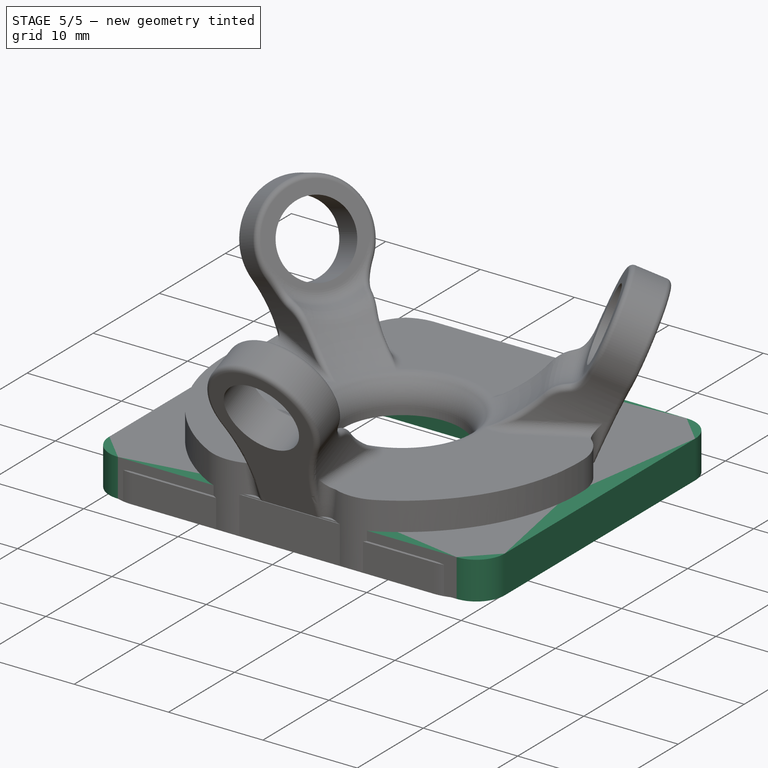
[diagram: stage 5 of 5 — iso view after this stage's code; geometry added in this stage tinted green]
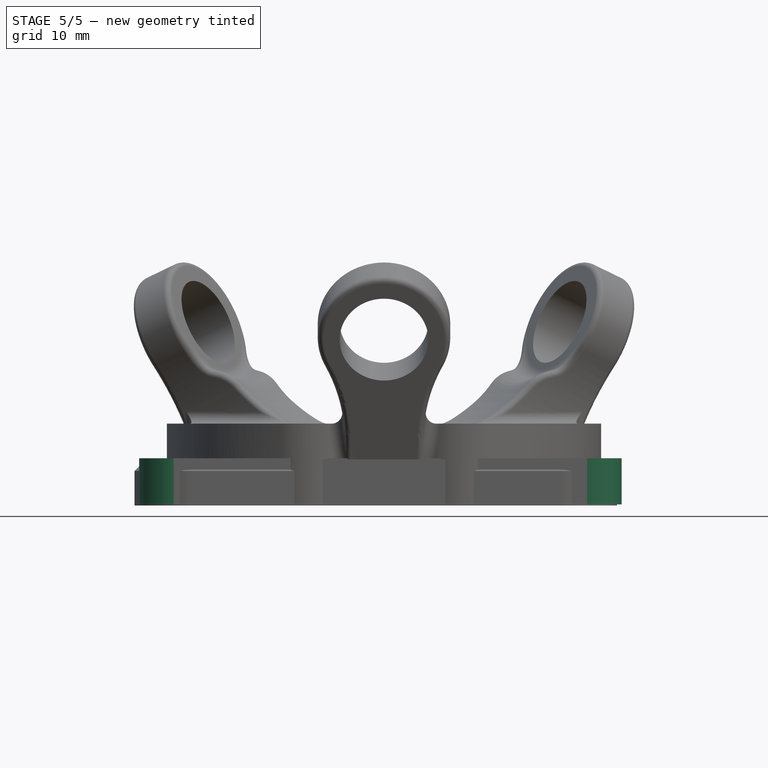
[diagram: stage 5 of 5 — front view after this stage's code; geometry added in this stage tinted green]
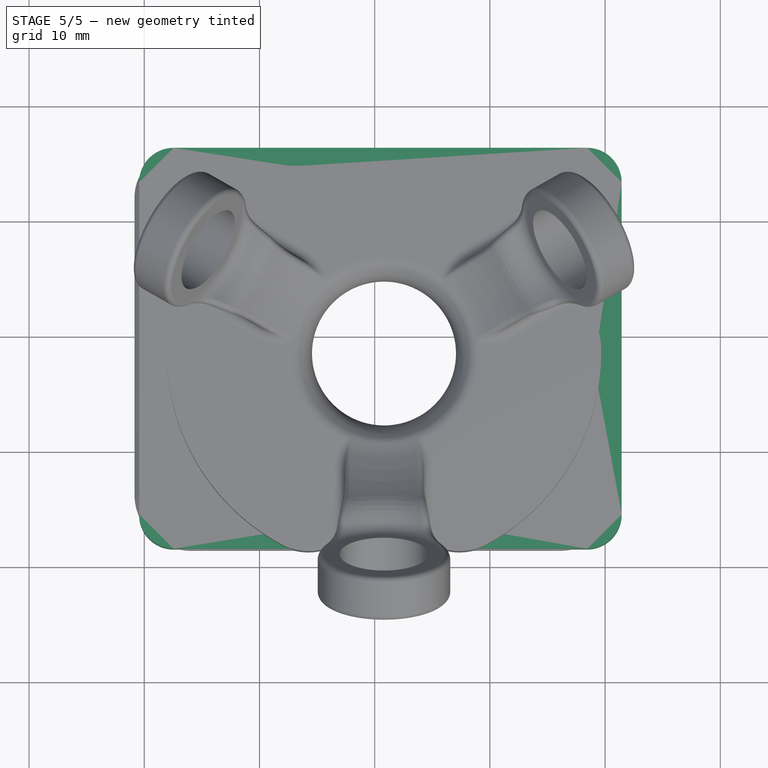
[diagram: stage 5 of 5 — top view after this stage's code; geometry added in this stage tinted green]
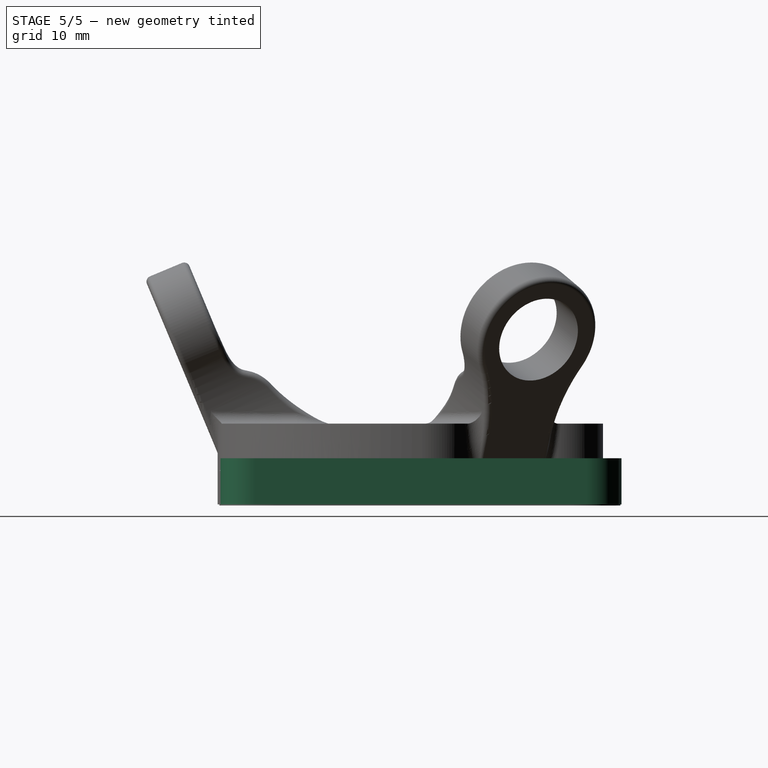
[diagram: stage 5 of 5 — right view after this stage's code; geometry added in this stage tinted green]
FEATURE [Sketcher::SketchObject] Sketch002
  ArcFitTolerance = 1e-06
  AttachmentSupport = -> [Pocket]
  ExternalGeometry = -> [Pocket]
  FullyConstrained = true
  MakeInternals = false
  MapMode = 5
  Placement = pos=(-40.692,0,0) rot=(0.57735,0.57735,0.57735;2.0944rad)
  sketch-geometry (4):
    g0: LineSegment StartX=-42.2543 StartY=11.29 StartZ=0 EndX=-42.2543 EndY=7.79 EndZ=0
    g1: LineSegment StartX=-42.2543 StartY=7.79 StartZ=0 EndX=-20.7543 EndY=7.79 EndZ=0
    g2: LineSegment StartX=-20.7543 StartY=7.79 StartZ=0 EndX=-20.7543 EndY=11.29 EndZ=0
    g3: LineSegment StartX=-20.7543 StartY=11.29 StartZ=0 EndX=-42.2543 EndY=11.29 EndZ=0
  constraints (10):
    c: Coincident(g0,g1)
    c: Coincident(g1,g2)
    c: Coincident(g2,g3)
    c: Coincident(g3,g0)
    c: Vertical(g0)
    c: Vertical(g2)
    c: Horizontal(g1)
    c: Horizontal(g3)
    c: Coincident(g0,g-3)
    c: Coincident(g1,g-4)
FEATURE [PartDesign::Pocket] Pocket001
  BaseFeature = -> Pocket
  Direction = (-1,0,0)
  Length = 23
  Length2 = 5
  Profile = -> Sketch002
  ReferenceAxis = -> Sketch002 [N_Axis]
  Refine = true
  Reversed = true
  Suppressed = false
  Type = 0
FEATURE [Sketcher::SketchObject] Sketch011
  ArcFitTolerance = 1e-06
  AttachmentSupport = -> [Pocket001]
  FullyConstrained = false
  MakeInternals = false
  MapMode = 5
  Placement = pos=(0,2e-16,7.79) rot=(1,0,0;3.14159rad)
  sketch-geometry (8):
    g0: Circle [constr] CenterX=-47.4493 CenterY=45.4463 CenterZ=0 NormalX=0 NormalY=0 NormalZ=1 AngleXU=0 Radius=1.25
    g1: Circle [constr] CenterX=-11.5558 CenterY=45.4556 CenterZ=0 NormalX=0 NormalY=0 NormalZ=1 AngleXU=0 Radius=1.25
    g2: Circle [constr] CenterX=-11.5625 CenterY=16.6378 CenterZ=0 NormalX=0 NormalY=0 NormalZ=1 AngleXU=0 Radius=1.25
    g3: Circle [constr] CenterX=-47.4641 CenterY=16.6426 CenterZ=0 NormalX=0 NormalY=0 NormalZ=1 AngleXU=0 Radius=1.25
    g4: Circle CenterX=-47.4493 CenterY=45.4463 CenterZ=0 NormalX=0 NormalY=0 NormalZ=1 AngleXU=0 Radius=1.65
    g5: Circle CenterX=-11.5558 CenterY=45.4556 CenterZ=0 NormalX=0 NormalY=0 NormalZ=1 AngleXU=0 Radius=1.65
    g6: Circle CenterX=-11.5625 CenterY=16.6378 CenterZ=0 NormalX=0 NormalY=0 NormalZ=1 AngleXU=0 Radius=1.65
    g7: Circle CenterX=-47.4641 CenterY=16.6426 CenterZ=0 NormalX=0 NormalY=0 NormalZ=1 AngleXU=0 Radius=1.65
  constraints (12):
    c: Diameter(g0) = 2.5
    c: Diameter(g1) = 2.5
    c: Diameter(g2) = 2.5
    c: Diameter(g3) = 2.5
    c: Diameter(g4) = 3.3
    c: Coincident(g4,g0)
    c: Diameter(g5) = 3.3
    c: Coincident(g5,g1)
    c: Diameter(g6) = 3.3
    c: Coincident(g6,g2)
    c: Diameter(g7) = 3.3
    c: Coincident(g7,g3)
FEATURE [Sketcher::SketchObject] Sketch012
  ArcFitTolerance = 1e-06
  AttachmentSupport = -> [Pocket001]
  FullyConstrained = false
  MakeInternals = false
  MapMode = 5
  Placement = pos=(0,2e-16,7.79) rot=(1,0,0;3.14159rad)
  sketch-geometry (4):
    g0: LineSegment StartX=-50.4523 StartY=48.4546 StartZ=0 EndX=-50.4523 EndY=13.6447 EndZ=0
    g1: LineSegment StartX=-50.4523 StartY=13.6447 StartZ=0 EndX=-8.56249 EndY=13.6447 EndZ=0
    g2: LineSegment StartX=-8.56249 StartY=13.6447 StartZ=0 EndX=-8.56249 EndY=48.4546 EndZ=0
    g3: LineSegment StartX=-8.56249 StartY=48.4546 StartZ=0 EndX=-50.4523 EndY=48.4546 EndZ=0
  constraints (8):
    c: Coincident(g0,g1)
    c: Coincident(g1,g2)
    c: Coincident(g2,g3)
    c: Coincident(g3,g0)
    c: Vertical(g0)
    c: Vertical(g2)
    c: Horizontal(g1)
    c: Horizontal(g3)
FEATURE [PartDesign::Pad] Pad002
  BaseFeature = -> Pocket001
  Direction = (0,0,-1)
  Length = 4
  Length2 = 10
  Profile = -> Sketch012
  ReferenceAxis = -> Sketch012 [N_Axis]
  Refine = true
  Reversed = true
  Suppressed = false
  Type = 0
FEATURE [PartDesign::Pocket] Pocket009
  BaseFeature = -> Pad002
  Direction = (0,0,1)
  Length = 3.3
  Length2 = 5
  Profile = -> Sketch011
  ReferenceAxis = -> Sketch011 [N_Axis]
  Refine = true
  Suppressed = false
  Type = 0
FEATURE [Sketcher::SketchObject] Sketch013
  ArcFitTolerance = 1e-06
  AttachmentSupport = -> [Pocket009]
  FullyConstrained = false
  MakeInternals = false
  MapMode = 5
  Placement = pos=(0,0,11.79) rot=(0,0,1;0rad)
  sketch-geometry (12):
    g0: LineSegment StartX=-40.4105 StartY=-24.0564 StartZ=0 EndX=-40.4105 EndY=-39.1305 EndZ=0
    g1: LineSegment StartX=-37.9275 StartY=-41.6135 StartZ=0 EndX=-20.5404 EndY=-41.6135 EndZ=0
    g2: LineSegment StartX=-18.0744 StartY=-39.1475 StartZ=0 EndX=-18.0744 EndY=-24.176 EndZ=0
    g3: LineSegment StartX=-20.9466 StartY=-21.3038 StartZ=0 EndX=-37.6578 EndY=-21.3038 EndZ=0
    g4: ArcOfCircle CenterX=-20.9466 CenterY=-24.176 CenterZ=0 NormalX=0 NormalY=0 NormalZ=1 AngleXU=0 Radius=2.87223 StartAngle=0 EndAngle=1.5708
    g5: GeomPoint [constr] X=-18.0744 Y=-21.3038 Z=0
    g6: ArcOfCircle CenterX=-37.6578 CenterY=-24.0564 CenterZ=0 NormalX=0 NormalY=0 NormalZ=1 AngleXU=0 Radius=2.75261 StartAngle=1.5708 EndAngle=3.14159
    g7: GeomPoint [constr] X=-40.4105 Y=-21.3038 Z=0
    g8: ArcOfCircle CenterX=-37.9275 CenterY=-39.1305 CenterZ=0 NormalX=0 NormalY=0 NormalZ=1 AngleXU=0 Radius=2.48295 StartAngle=3.14159 EndAngle=4.71239
    g9: GeomPoint [constr] X=-40.4105 Y=-41.6135 Z=0
    g10: ArcOfCircle CenterX=-20.5404 CenterY=-39.1475 CenterZ=0 NormalX=0 NormalY=0 NormalZ=1 AngleXU=0 Radius=2.46604 StartAngle=4.71239 EndAngle=6.28319
    g11: GeomPoint [constr] X=-18.0744 Y=-41.6135 Z=0
  constraints (20):
    c: Vertical(g0)
    c: Vertical(g2)
    c: Horizontal(g1)
    c: Horizontal(g3)
    c: PointOnObject(g5,g2)
    c: PointOnObject(g5,g3)
    c: Tangent(g2,g4) = -1.5708
    c: Tangent(g3,g4) = -1.5708
    c: PointOnObject(g7,g0)
    c: PointOnObject(g7,g3)
    c: Tangent(g0,g6) = -1.5708
    c: Tangent(g3,g6) = -1.5708
    c: PointOnObject(g9,g0)
    c: PointOnObject(g9,g1)
    c: Tangent(g0,g8) = -1.5708
    c: Tangent(g1,g8) = -1.5708
    c: PointOnObject(g11,g1)
    c: PointOnObject(g11,g2)
    c: Tangent(g1,g10) = -1.5708
    c: Tangent(g2,g10) = -1.5708
FEATURE [PartDesign::Pocket] Pocket010
  BaseFeature = -> Pocket009
  Direction = (0,0,-1)
  Length = 5
  Length2 = 5
  Profile = -> Sketch013
  ReferenceAxis = -> Sketch013 [N_Axis]
  Refine = true
  Suppressed = false
  Type = 1
FEATURE [PartDesign::Fillet] Fillet
  Base = -> Pocket010 [Edge155,Edge143,Edge152,Edge156]
  BaseFeature = -> Pocket010
  Radius = 3
  Refine = true
  SupportTransform = false
  Suppressed = false
  UseAllEdges = false
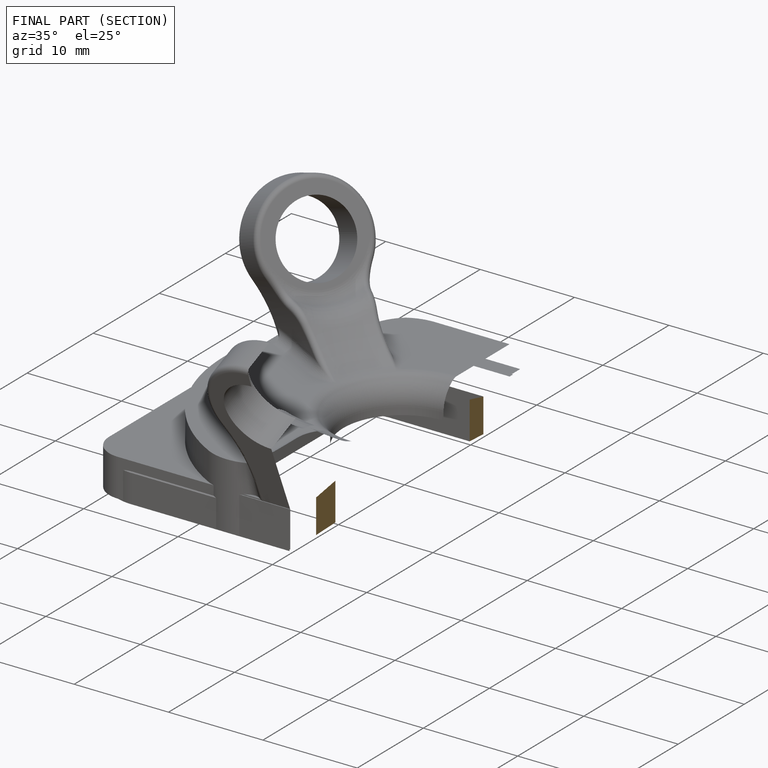
[diagram: finished part — half-section view (interior)]
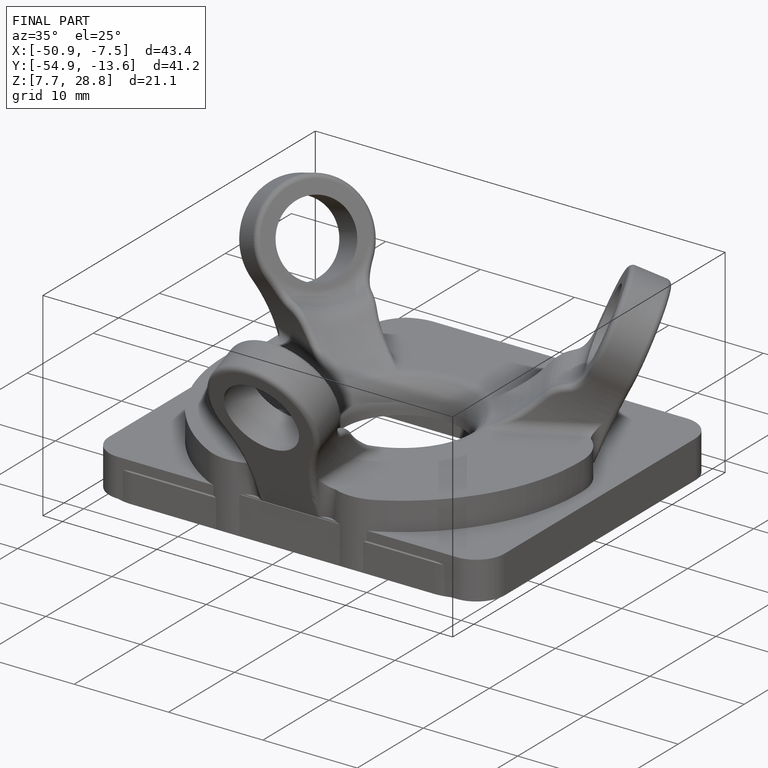
[diagram: finished part — iso view with bounding-box wireframe]
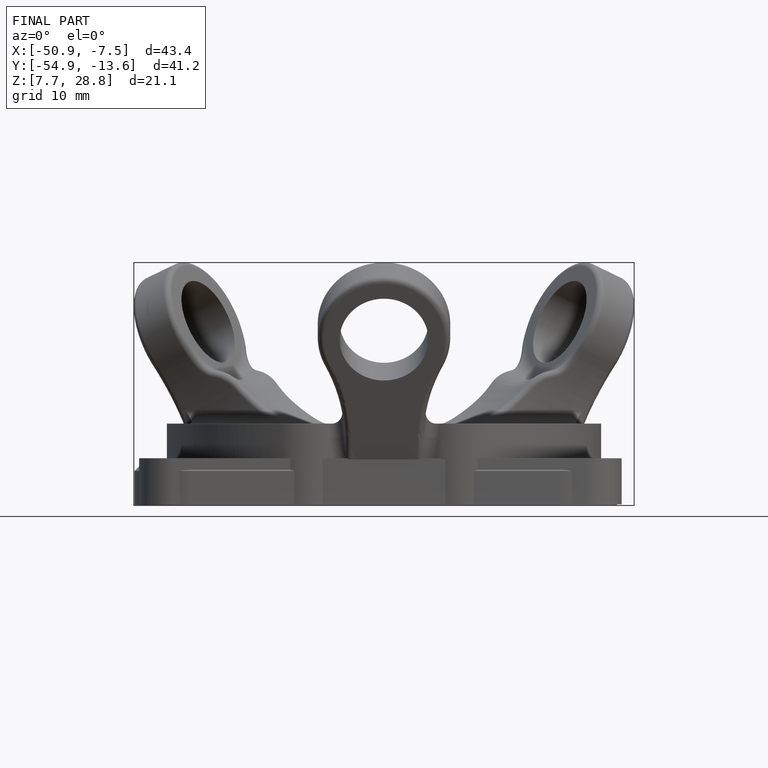
[diagram: finished part — front view with bounding-box wireframe]
